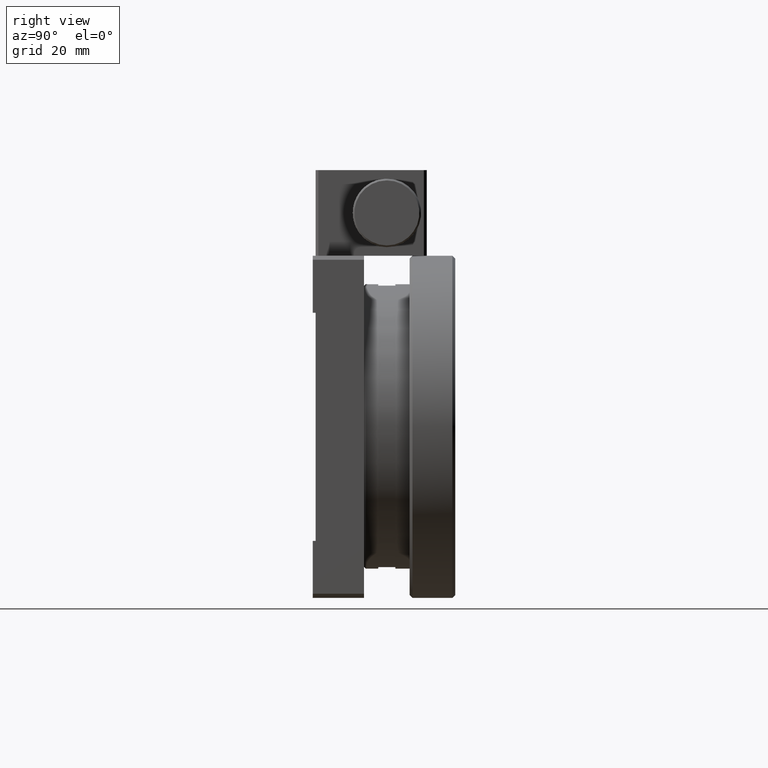
[diagram: clean part render]
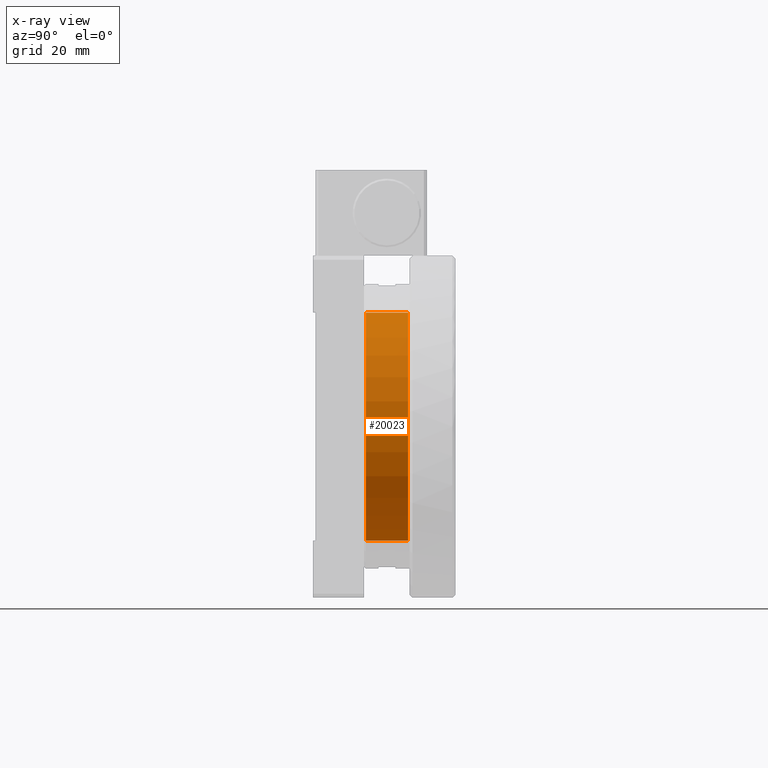
[diagram: x-ray — body ghosted, one internal face saturated and labeled with its STEP entity id]
A machine part, right view, then the same camera in x-ray: the body is ghosted and one INTERNAL B-rep face — a face not visible from any outside direction — is saturated and labeled: STEP entity #20023.
In plain terms, the highlighted cylindrical surface (bore or boss wall) has radius 20 mm, axis along (0, 1, 0).
Its self-contained STEP definition (entity closure, byte-faithful):
#2365 = VERTEX_POINT ( 'NONE', #15640 ) ;
#4097 = ORIENTED_EDGE ( 'NONE', *, *, #41553, .F. ) ;
#5938 = VERTEX_POINT ( 'NONE', #30816 ) ;
#15640 = CARTESIAN_POINT ( 'NONE',  ( 49.99999999999999289, 9.299999999999986500, -30.00000000000000000 ) ) ;
#16137 = AXIS2_PLACEMENT_3D ( 'NONE', #21309, #33805, #79668 ) ;
#16485 = AXIS2_PLACEMENT_3D ( 'NONE', #71203, #66453, #51908 ) ;
#16790 = ORIENTED_EDGE ( 'NONE', *, *, #61855, .T. ) ;
#20023 = ADVANCED_FACE ( 'NONE', ( #38227, #45911 ), #33485, .F. ) ;
#21309 = CARTESIAN_POINT ( 'NONE',  ( 30.00000000000000000, 9.299999999999988276, -30.00000000000000000 ) ) ;
#30816 = CARTESIAN_POINT ( 'NONE',  ( 30.00000000000000000, 16.69999999999999929, -9.999999999999998224 ) ) ;
#33485 = CYLINDRICAL_SURFACE ( 'NONE', #16485, 20.00000000000000000 ) ;
#33805 = DIRECTION ( 'NONE',  ( 0.000000000000000000, -1.000000000000000000, 0.000000000000000000 ) ) ;
#38227 = FACE_OUTER_BOUND ( 'NONE', #38979, .T. ) ;
#38979 = EDGE_LOOP ( 'NONE', ( #16790 ) ) ;
#41553 = EDGE_CURVE ( 'NONE', #5938, #5938, #64080, .T. ) ;
#43283 = CARTESIAN_POINT ( 'NONE',  ( 30.00000000000000000, 16.69999999999999929, -30.00000000000000000 ) ) ;
#45911 = FACE_OUTER_BOUND ( 'NONE', #47448, .T. ) ;
#47448 = EDGE_LOOP ( 'NONE', ( #4097 ) ) ;
#50993 = DIRECTION ( 'NONE',  ( 0.000000000000000000, 0.000000000000000000, 1.000000000000000000 ) ) ;
#51908 = DIRECTION ( 'NONE',  ( 0.000000000000000000, 0.000000000000000000, 1.000000000000000000 ) ) ;
#61855 = EDGE_CURVE ( 'NONE', #2365, #2365, #72292, .T. ) ;
#64080 = CIRCLE ( 'NONE', #84659, 20.00000000000000000 ) ;
#66453 = DIRECTION ( 'NONE',  ( 0.000000000000000000, 1.000000000000000000, 0.000000000000000000 ) ) ;
#71203 = CARTESIAN_POINT ( 'NONE',  ( 30.00000000000000000, 51.50000000000001421, -30.00000000000000000 ) ) ;
#72292 = CIRCLE ( 'NONE', #16137, 19.99999999999999645 ) ;
#76294 = DIRECTION ( 'NONE',  ( -0.000000000000000000, -1.000000000000000000, -0.000000000000000000 ) ) ;
#79668 = DIRECTION ( 'NONE',  ( 1.000000000000000000, -8.673617379884036705E-17, 0.000000000000000000 ) ) ;
#84659 = AXIS2_PLACEMENT_3D ( 'NONE', #43283, #76294, #50993 ) ;